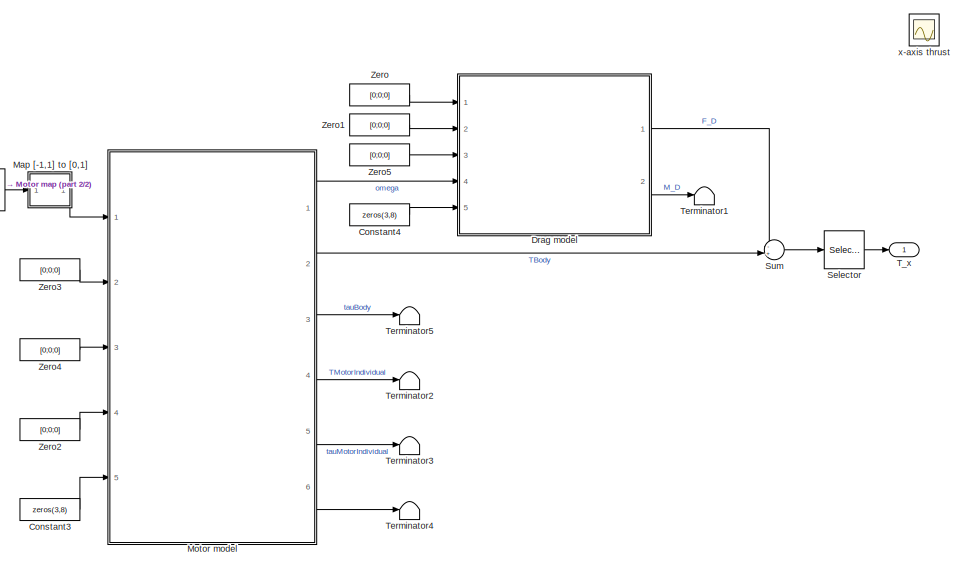
[diagram: root canvas - part 1/2, right side, full height]
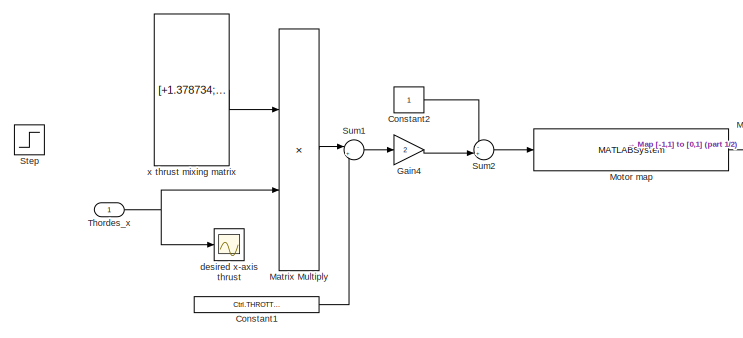
[diagram: root canvas - part 2/2, middle left region]
MODEL slx_b3bc649a1c5c
KIND model
CONFIG AbsTol = auto
CONFIG EnableMultiTasking = off
CONFIG FixedStep = auto
CONFIG MaxStep = auto
CONFIG MinStep = auto
CONFIG RelTol = 1e-3
CONFIG SampleTimeConstraint = Unconstrained
CONFIG SolverName = VariableStepAuto
CONFIG StartTime = 0.0
CONFIG StopTime = 10.0
BLOCK [Constant] Constant1
  Value = Ctrl.THROTTLE_HOVER
BLOCK [Constant] Constant2
BLOCK [Constant] Constant3
  Value = zeros(3,8)
BLOCK [Constant] Constant4
  Value = zeros(3,8)
BLOCK [ModelReference] Drag model
  ModelNameDialog = DragModelAIAAv3
  ModelReferenceVersion = 5.2
  Ports = [5, 2]
BLOCK [Gain] Gain4
  Gain = 2
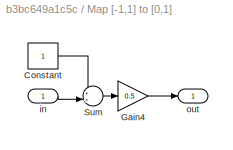
BLOCK [SubSystem] Map [-1,1] to [0,1]
  Ports = [1, 1]
  RequestExecContextInheritance = off
BLOCK [Constant] Map [-1,1] to [0,1]/Constant
BLOCK [Gain] Map [-1,1] to [0,1]/Gain4
  Gain = 0.5
BLOCK [Sum] Map [-1,1] to [0,1]/Sum
  Inputs = ++|
  Ports = [2, 1]
BLOCK [Inport] Map [-1,1] to [0,1]/in
BLOCK [Outport] Map [-1,1] to [0,1]/out
  VectorParamsAs1DForOutWhenUnconnected = off
BLOCK [Product] Matrix Multiply
  Ports = [2, 1]
BLOCK [MATLABSystem] Motor map
  MaskDisplay = disp(['MOTOR' char(10) 'MAP' char(10) 'octa_x']);\nport_label('input',1,'px4PWM');\nport_label('output',1,'simPWM');
  MaskType = MotorMap
  Ports = [1, 1]
  SimulateUsing = Code generation
  System = MotorMap
  airframeConfig = 5
BLOCK [ModelReference] Motor model
  ModelNameDialog = MotorModelZJChen
  ModelReferenceVersion = 5.2
  Ports = [5, 6]
BLOCK [Selector] Selector
  IndexOptions = Index vector (dialog)
  Indices = [1]
  InputPortWidth = 3
  OutputSizes = 1
  Ports = [1, 1]
BLOCK [Step] Step
  After = 0.1
  SampleTime = 0
BLOCK [Sum] Sum
  Inputs = -+|
  Ports = [2, 1]
BLOCK [Sum] Sum1
  Inputs = |++
  Ports = [2, 1]
BLOCK [Sum] Sum2
  Inputs = -+|
  Ports = [2, 1]
BLOCK [Outport] T_x
  VectorParamsAs1DForOutWhenUnconnected = off
BLOCK [Terminator] Terminator1
BLOCK [Terminator] Terminator2
BLOCK [Terminator] Terminator3
BLOCK [Terminator] Terminator4
BLOCK [Terminator] Terminator5
BLOCK [Inport] Thordes_x
BLOCK [Constant] Zero
  OutDataTypeStr = Inherit: Inherit via back propagation
  Value = [0;0;0]
BLOCK [Constant] Zero1
  OutDataTypeStr = Inherit: Inherit via back propagation
  Value = [0;0;0]
BLOCK [Constant] Zero2
  OutDataTypeStr = Inherit: Inherit via back propagation
  Value = [0;0;0]
BLOCK [Constant] Zero3
  OutDataTypeStr = Inherit: Inherit via back propagation
  Value = [0;0;0]
BLOCK [Constant] Zero4
  OutDataTypeStr = Inherit: Inherit via back propagation
  Value = [0;0;0]
BLOCK [Constant] Zero5
  OutDataTypeStr = Inherit: Inherit via back propagation
  Value = [0;0;0]
BLOCK [Scope] desired x-axis thrust
  Floating = off
  NumInputPorts = 1
  Ports = [1]
  ScopeSpecificationString = Simulink.scopes.TimeScopeBlockCfg('CurrentConfiguration', extmgr.ConfigurationSet(extmgr.Configuration('Core','General UI',true),extmgr.Configuration('Core','Source UI',true),extmgr.Configuration('Sources','WiredSimulink',true),extmgr.Configuration('Visuals','Time Domain',true,'SerializedDisplays',{struct('MinYLimReal','-0.0125','MaxYLimReal','0.1125','YLabelReal','','MinYLimMag','0.00000','MaxYLi...<+1412ch>
BLOCK [Constant] x thrust mixing matrix
  Value = [+1.378734;\n -1.378734;\n -3.328559;\n -1.378734;\n +1.378734;\n +3.328559;\n -3.328559;\n +3.328559]
  VectorParams1D = off
BLOCK [Scope] x-axis thrust
  Floating = off
  NumInputPorts = 1
  Ports = [1]
  ScopeSpecificationString = Simulink.scopes.TimeScopeBlockCfg('CurrentConfiguration', extmgr.ConfigurationSet(extmgr.Configuration('Core','General UI',true),extmgr.Configuration('Core','Source UI',true),extmgr.Configuration('Sources','WiredSimulink',true,'DataLoggingVariableName','ScopeData3'),extmgr.Configuration('Visuals','Time Domain',true,'SerializedDisplays',{struct('MinYLimReal','5.1998','MaxYLimReal','5.24664','YLabel...<+1459ch>
LINE Constant1:1 -> Sum1:2
LINE Constant2:1 -> Sum2:1
LINE Constant3:1 -> Motor model:5
LINE Constant4:1 -> Drag model:5
LINE Drag model:1 -> Sum:1
LINE Drag model:2 -> Terminator1:1
LINE Gain4:1 -> Sum2:2
LINE Map [-1,1] to [0,1]/Constant:1 -> Map [-1,1] to [0,1]/Sum:1
LINE Map [-1,1] to [0,1]/Gain4:1 -> Map [-1,1] to [0,1]/out:1
LINE Map [-1,1] to [0,1]/Sum:1 -> Map [-1,1] to [0,1]/Gain4:1
LINE Map [-1,1] to [0,1]/in:1 -> Map [-1,1] to [0,1]/Sum:2
LINE Map [-1,1] to [0,1]:1 -> Motor model:1
LINE Matrix Multiply:1 -> Sum1:1
LINE Motor map:1 -> Map [-1,1] to [0,1]:1
LINE Motor model:1 -> Drag model:4
LINE Motor model:2 -> Sum:2
LINE Motor model:3 -> Terminator5:1
LINE Motor model:4 -> Terminator2:1
LINE Motor model:5 -> Terminator3:1
LINE Motor model:6 -> Terminator4:1
LINE Selector:1 -> T_x:1
LINE Sum1:1 -> Gain4:1
LINE Sum2:1 -> Motor map:1
LINE Sum:1 -> Selector:1
NET Thordes_x:1 -> Matrix Multiply:2, desired x-axis thrust:1
LINE Zero1:1 -> Drag model:2
LINE Zero2:1 -> Motor model:4
LINE Zero3:1 -> Motor model:2
LINE Zero4:1 -> Motor model:3
LINE Zero5:1 -> Drag model:3
LINE Zero:1 -> Drag model:1
LINE x thrust mixing matrix:1 -> Matrix Multiply:1
note: NET lines group one-source signal fan-out (src -> all destinations, sorted); 1:1 wires keep LINE
